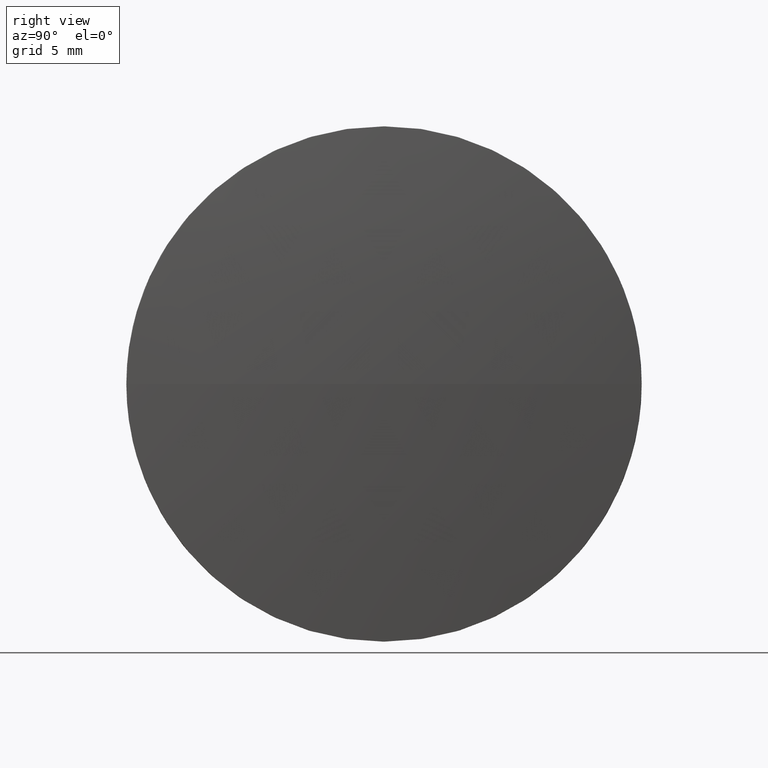
[diagram: clean part render]
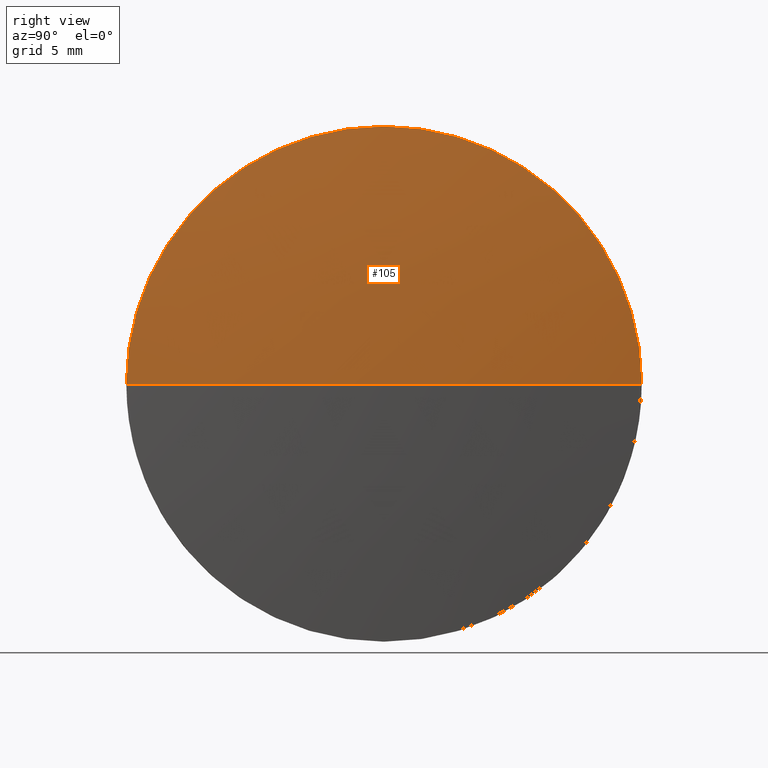
[diagram: same view with one face highlighted and labeled with its STEP entity id]
A machine part, right view. The second image highlights one B-rep face of the part: STEP entity #105.
In plain terms, the highlighted spherical surface has radius 205.616 mm.
Its self-contained STEP definition (entity closure, byte-faithful):
#1 = VERTEX_POINT ( 'NONE', #63 ) ;
#4 = EDGE_CURVE ( 'NONE', #1, #55, #65, .T. ) ;
#5 = ORIENTED_EDGE ( 'NONE', *, *, #176, .F. ) ;
#8 = CARTESIAN_POINT ( 'NONE',  ( 511.3964132344987100, 118.9984717383097600, 0.0000000000000000000 ) ) ;
#10 = DIRECTION ( 'NONE',  ( 0.0000000000000000000, 0.0000000000000000000, 1.000000000000000000 ) ) ;
#20 = SPHERICAL_SURFACE ( 'NONE', #152, 205.6157051282092700 ) ;
#21 = DIRECTION ( 'NONE',  ( -1.000000000000000000, -0.0000000000000000000, -0.0000000000000000000 ) ) ;
#23 = DIRECTION ( 'NONE',  ( 0.0000000000000000000, 0.0000000000000000000, 1.000000000000000000 ) ) ;
#26 = DIRECTION ( 'NONE',  ( 0.0000000000000000000, -1.000000000000000000, 0.0000000000000000000 ) ) ;
#28 = CIRCLE ( 'NONE', #132, 205.6157051282092700 ) ;
#31 = EDGE_CURVE ( 'NONE', #131, #55, #150, .T. ) ;
#34 = CARTESIAN_POINT ( 'NONE',  ( 511.3964132344987100, 118.9984717383097600, 0.0000000000000000000 ) ) ;
#36 = DIRECTION ( 'NONE',  ( 0.0000000000000000000, -1.000000000000000000, -1.224646799147353200E-016 ) ) ;
#40 = CARTESIAN_POINT ( 'NONE',  ( 306.7557081062893800, 118.9984717383098300, 0.0000000000000000000 ) ) ;
#44 = VERTEX_POINT ( 'NONE', #50 ) ;
#50 = CARTESIAN_POINT ( 'NONE',  ( 511.3964132344987100, 98.99847173830990200, 0.0000000000000000000 ) ) ;
#55 = VERTEX_POINT ( 'NONE', #166 ) ;
#56 = DIRECTION ( 'NONE',  ( -1.000000000000000000, 0.0000000000000000000, 0.0000000000000000000 ) ) ;
#59 = FACE_OUTER_BOUND ( 'NONE', #163, .T. ) ;
#63 = CARTESIAN_POINT ( 'NONE',  ( 511.3964132344987100, 118.9984717383097600, 20.00000000000000400 ) ) ;
#64 = AXIS2_PLACEMENT_3D ( 'NONE', #8, #82, #10 ) ;
#65 = CIRCLE ( 'NONE', #87, 20.00000000000000400 ) ;
#77 = ORIENTED_EDGE ( 'NONE', *, *, #130, .F. ) ;
#79 = DIRECTION ( 'NONE',  ( 0.0000000000000000000, 0.0000000000000000000, -1.000000000000000000 ) ) ;
#82 = DIRECTION ( 'NONE',  ( -1.000000000000000000, -0.0000000000000000000, -0.0000000000000000000 ) ) ;
#87 = AXIS2_PLACEMENT_3D ( 'NONE', #34, #21, #118 ) ;
#91 = CARTESIAN_POINT ( 'NONE',  ( 306.7557081062893800, 118.9984717383098300, 0.0000000000000000000 ) ) ;
#105 = ADVANCED_FACE ( 'NONE', ( #59 ), #20, .T. ) ;
#113 = ORIENTED_EDGE ( 'NONE', *, *, #4, .F. ) ;
#118 = DIRECTION ( 'NONE',  ( 0.0000000000000000000, 0.0000000000000000000, 1.000000000000000000 ) ) ;
#121 = AXIS2_PLACEMENT_3D ( 'NONE', #91, #122, #36 ) ;
#122 = DIRECTION ( 'NONE',  ( 0.0000000000000000000, -1.224646799147353200E-016, 1.000000000000000000 ) ) ;
#123 = CARTESIAN_POINT ( 'NONE',  ( 306.7557081062893800, 118.9984717383098300, 0.0000000000000000000 ) ) ;
#126 = CARTESIAN_POINT ( 'NONE',  ( 512.3714132344986200, 118.9984717383098200, 0.0000000000000000000 ) ) ;
#130 = EDGE_CURVE ( 'NONE', #131, #44, #28, .T. ) ;
#131 = VERTEX_POINT ( 'NONE', #126 ) ;
#132 = AXIS2_PLACEMENT_3D ( 'NONE', #123, #79, #56 ) ;
#150 = CIRCLE ( 'NONE', #121, 205.6157051282092700 ) ;
#152 = AXIS2_PLACEMENT_3D ( 'NONE', #40, #23, #26 ) ;
#153 = ORIENTED_EDGE ( 'NONE', *, *, #31, .T. ) ;
#163 = EDGE_LOOP ( 'NONE', ( #77, #153, #113, #5 ) ) ;
#166 = CARTESIAN_POINT ( 'NONE',  ( 511.3964132344987100, 138.9984717383096900, 2.449293598294687200E-015 ) ) ;
#167 = CIRCLE ( 'NONE', #64, 20.00000000000000400 ) ;
#176 = EDGE_CURVE ( 'NONE', #44, #1, #167, .T. ) ;